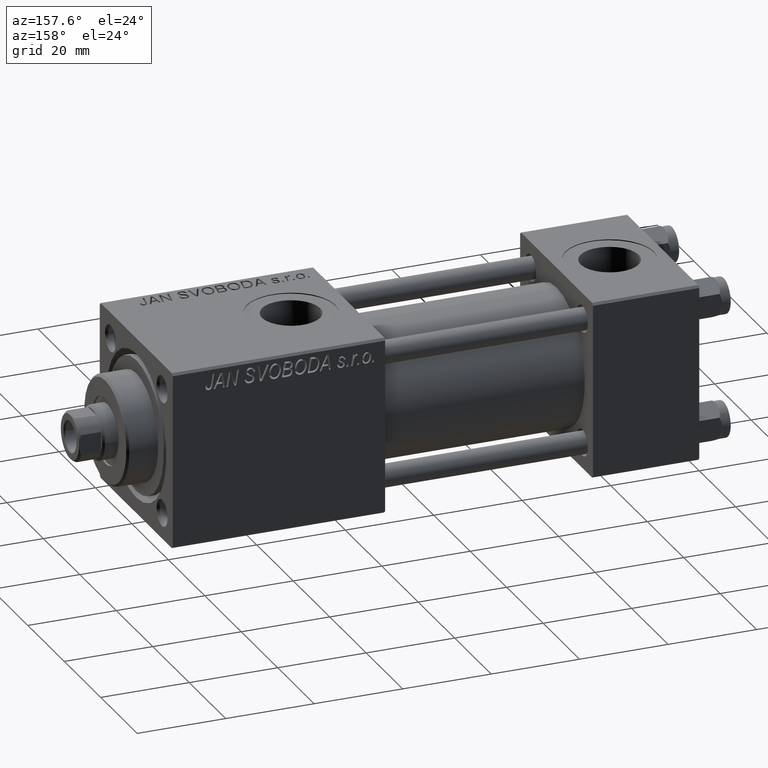
[diagram: clean part render]
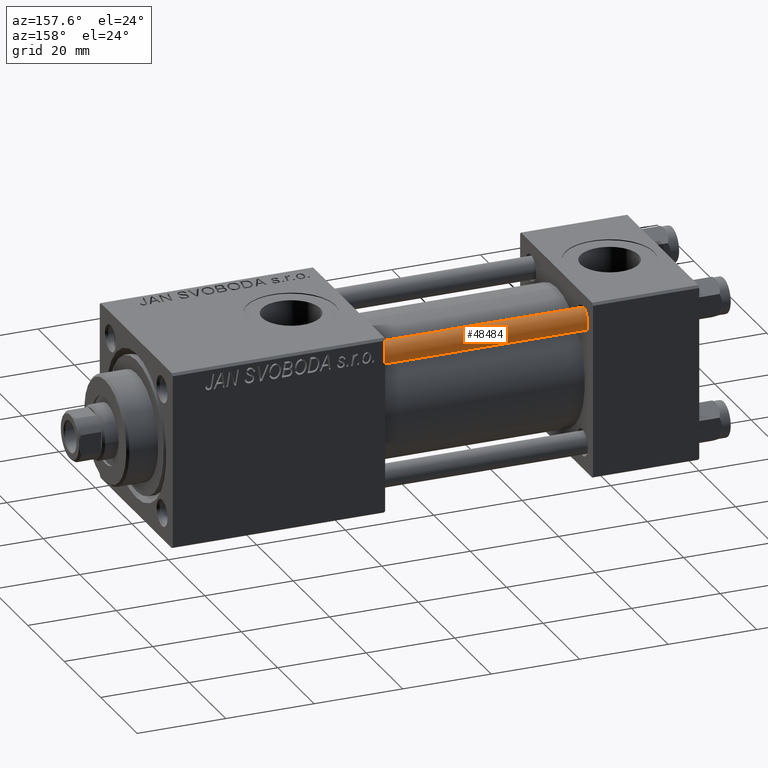
[diagram: same view with one face highlighted and labeled with its STEP entity id]
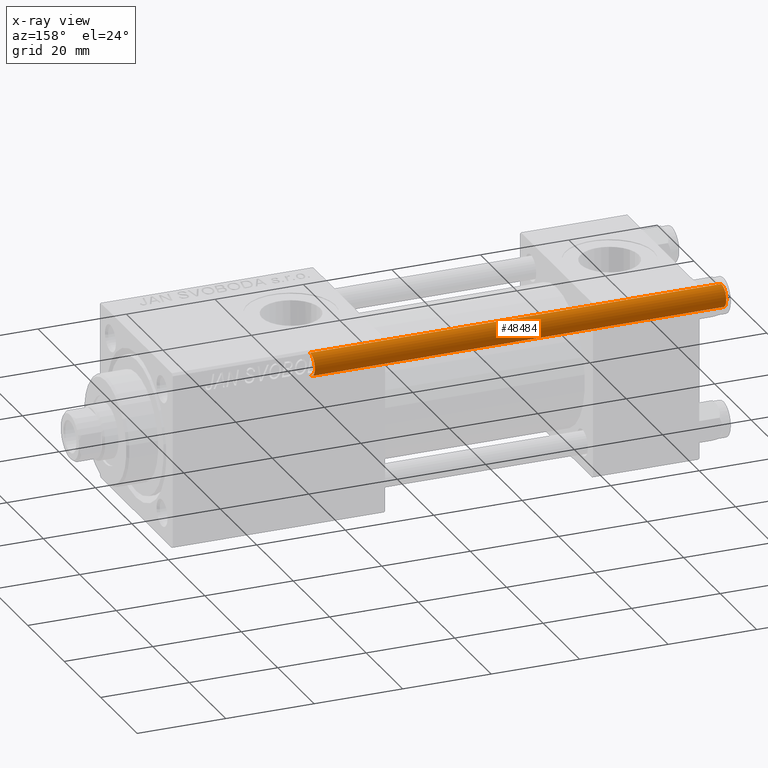
[diagram: x-ray of the same camera — body ghosted, the highlighted face saturated]
A machine part, auxiliary view. The second image highlights one B-rep face of the part: STEP entity #48484.
The next image is the same camera in x-ray: the body ghosted, the highlighted face saturated — about 0% of this face is hidden behind the body in this view.
In plain terms, the highlighted cylindrical surface (edge-blend (fillet) strip) has radius 2.5 mm, axis along (-1, 0, 0).
Its self-contained STEP definition (entity closure, byte-faithful):
#253 = VECTOR ( 'NONE', #44909, 1000.000000000000000 ) ;
#2822 = AXIS2_PLACEMENT_3D ( 'NONE', #36736, #28141, #40289 ) ;
#3507 = ORIENTED_EDGE ( 'NONE', *, *, #39125, .T. ) ;
#8213 = CIRCLE ( 'NONE', #22742, 2.500000000000000000 ) ;
#9685 = CARTESIAN_POINT ( 'NONE',  ( 2.500000000000000000, 3.061616997868383141E-16, 93.50000000000001421 ) ) ;
#12975 = VERTEX_POINT ( 'NONE', #32208 ) ;
#17489 = CARTESIAN_POINT ( 'NONE',  ( 0.000000000000000000, 0.000000000000000000, 93.50000000000001421 ) ) ;
#17549 = LINE ( 'NONE', #33007, #253 ) ;
#18257 = AXIS2_PLACEMENT_3D ( 'NONE', #32491, #39865, #21084 ) ;
#21084 = DIRECTION ( 'NONE',  ( 1.000000000000000000, 0.000000000000000000, 0.000000000000000000 ) ) ;
#21089 = EDGE_CURVE ( 'NONE', #49420, #12975, #25572, .T. ) ;
#21399 = DIRECTION ( 'NONE',  ( -0.000000000000000000, -0.000000000000000000, -1.000000000000000000 ) ) ;
#21861 = CARTESIAN_POINT ( 'NONE',  ( 2.500000000000000000, 3.061616997868383141E-16, 0.5000000000000004441 ) ) ;
#22742 = AXIS2_PLACEMENT_3D ( 'NONE', #17489, #41050, #33197 ) ;
#23752 = EDGE_LOOP ( 'NONE', ( #3507, #41407, #30677, #26815 ) ) ;
#24931 = CARTESIAN_POINT ( 'NONE',  ( -2.500000000000000000, 0.000000000000000000, 94.00000000000000000 ) ) ;
#25572 = CIRCLE ( 'NONE', #18257, 2.500000000000000000 ) ;
#26552 = EDGE_CURVE ( 'NONE', #42671, #12975, #32554, .T. ) ;
#26815 = ORIENTED_EDGE ( 'NONE', *, *, #26552, .F. ) ;
#28141 = DIRECTION ( 'NONE',  ( -0.000000000000000000, -0.000000000000000000, -1.000000000000000000 ) ) ;
#28980 = VECTOR ( 'NONE', #21399, 1000.000000000000000 ) ;
#30677 = ORIENTED_EDGE ( 'NONE', *, *, #21089, .T. ) ;
#32208 = CARTESIAN_POINT ( 'NONE',  ( -2.500000000000000000, 0.000000000000000000, 0.5000000000000004441 ) ) ;
#32491 = CARTESIAN_POINT ( 'NONE',  ( 0.000000000000000000, 0.000000000000000000, 0.5000000000000004441 ) ) ;
#32554 = LINE ( 'NONE', #24931, #28980 ) ;
#33007 = CARTESIAN_POINT ( 'NONE',  ( 2.500000000000000000, 3.061616997868383141E-16, 94.00000000000000000 ) ) ;
#33197 = DIRECTION ( 'NONE',  ( 1.000000000000000000, 0.000000000000000000, 0.000000000000000000 ) ) ;
#34638 = CARTESIAN_POINT ( 'NONE',  ( -2.500000000000000000, 0.000000000000000000, 93.50000000000001421 ) ) ;
#36736 = CARTESIAN_POINT ( 'NONE',  ( 0.000000000000000000, 0.000000000000000000, 94.00000000000000000 ) ) ;
#38895 = VERTEX_POINT ( 'NONE', #9685 ) ;
#39125 = EDGE_CURVE ( 'NONE', #42671, #38895, #8213, .T. ) ;
#39865 = DIRECTION ( 'NONE',  ( -0.000000000000000000, -0.000000000000000000, 1.000000000000000000 ) ) ;
#40289 = DIRECTION ( 'NONE',  ( -1.000000000000000000, 0.000000000000000000, 0.000000000000000000 ) ) ;
#41050 = DIRECTION ( 'NONE',  ( 0.000000000000000000, 0.000000000000000000, -1.000000000000000000 ) ) ;
#41407 = ORIENTED_EDGE ( 'NONE', *, *, #43365, .T. ) ;
#42671 = VERTEX_POINT ( 'NONE', #34638 ) ;
#43365 = EDGE_CURVE ( 'NONE', #38895, #49420, #17549, .T. ) ;
#43595 = FACE_OUTER_BOUND ( 'NONE', #23752, .T. ) ;
#44328 = CYLINDRICAL_SURFACE ( 'NONE', #2822, 2.500000000000000000 ) ;
#44909 = DIRECTION ( 'NONE',  ( -0.000000000000000000, -0.000000000000000000, -1.000000000000000000 ) ) ;
#48484 = ADVANCED_FACE ( 'NONE', ( #43595 ), #44328, .T. ) ;
#49420 = VERTEX_POINT ( 'NONE', #21861 ) ;